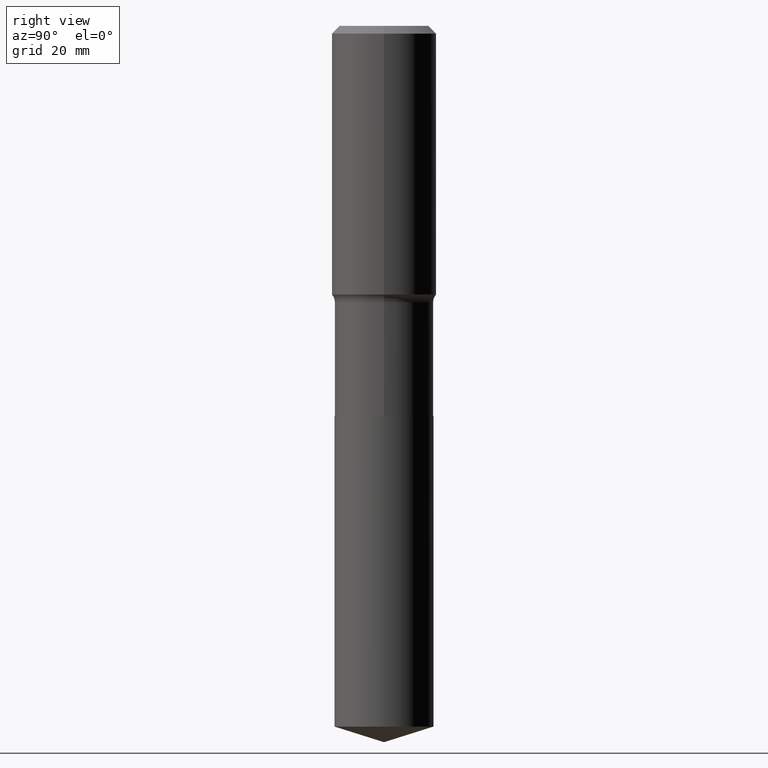
[diagram: clean part render]
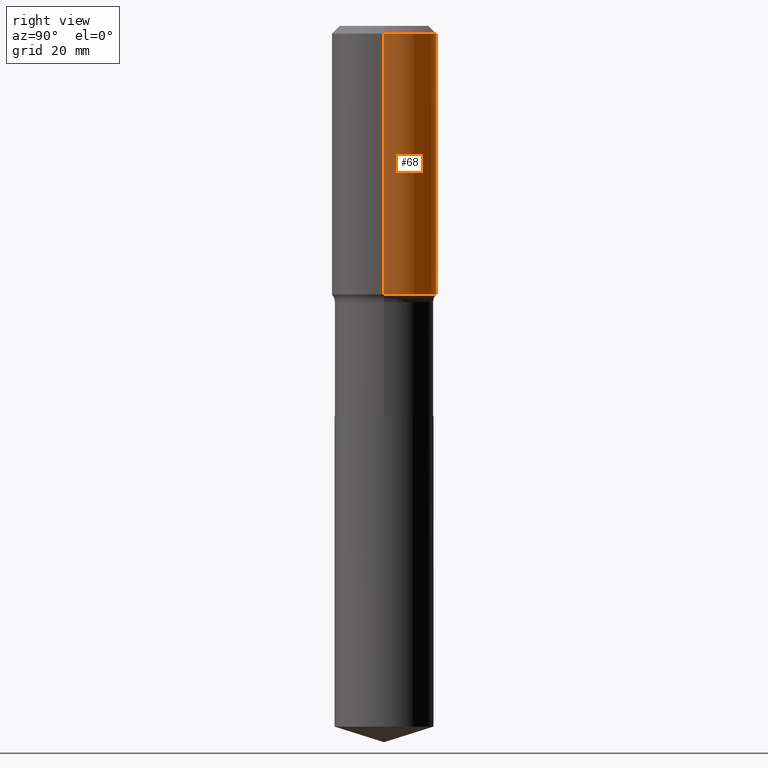
[diagram: same view with one face highlighted and labeled with its STEP entity id]
A machine part, right view. The second image highlights one B-rep face of the part: STEP entity #68.
In plain terms, the highlighted cylindrical surface (partial cylindrical patch) has radius 9.0005 mm, axis along (-0, 0, 1).
Its self-contained STEP definition (entity closure, byte-faithful):
#5 = CARTESIAN_POINT ( 'NONE',  ( 0.3543500000000001648, -8.815927369643196771E-15, -1.816281952950733025 ) ) ;
#12 = CARTESIAN_POINT ( 'NONE',  ( 0.3543499999999999983, -2.659993786700990170E-15, -0.05315250000000035224 ) ) ;
#41 = VERTEX_POINT ( 'NONE', #5 ) ;
#48 = CIRCLE ( 'NONE', #310, 0.3543499999999999983 ) ;
#68 = ADVANCED_FACE ( 'NONE', ( #466 ), #474, .T. ) ;
#69 = ORIENTED_EDGE ( 'NONE', *, *, #428, .T. ) ;
#76 = VERTEX_POINT ( 'NONE', #12 ) ;
#88 = CARTESIAN_POINT ( 'NONE',  ( 4.441660859178037633E-29, -6.341514544805068471E-15, -1.816281952950733025 ) ) ;
#107 = DIRECTION ( 'NONE',  ( 1.000000000000000000, -6.982962677686266711E-15, 0.000000000000000000 ) ) ;
#139 = CARTESIAN_POINT ( 'NONE',  ( -0.3543500000000001648, 2.517808184165916180E-15, -1.743024649231826627E-29 ) ) ;
#145 = CARTESIAN_POINT ( 'NONE',  ( 0.3543500000000001648, -2.474412824838129483E-15, 1.727873240503290590E-29 ) ) ;
#159 = ORIENTED_EDGE ( 'NONE', *, *, #305, .F. ) ;
#187 = AXIS2_PLACEMENT_3D ( 'NONE', #88, #235, #107 ) ;
#211 = VECTOR ( 'NONE', #361, 39.37007874015748143 ) ;
#212 = CARTESIAN_POINT ( 'NONE',  ( 0.000000000000000000, 0.000000000000000000, 0.000000000000000000 ) ) ;
#213 = LINE ( 'NONE', #139, #211 ) ;
#222 = CIRCLE ( 'NONE', #187, 0.3543500000000002204 ) ;
#235 = DIRECTION ( 'NONE',  ( -2.445468806185136597E-29, 3.491481338843145583E-15, 1.000000000000000000 ) ) ;
#249 = EDGE_CURVE ( 'NONE', #41, #373, #222, .T. ) ;
#258 = AXIS2_PLACEMENT_3D ( 'NONE', #212, #322, #429 ) ;
#260 = ORIENTED_EDGE ( 'NONE', *, *, #249, .T. ) ;
#262 = DIRECTION ( 'NONE',  ( -2.445468806185136597E-29, 3.491481338843145583E-15, 1.000000000000000000 ) ) ;
#266 = CARTESIAN_POINT ( 'NONE',  ( -0.3543500000000001648, -3.823706360639151503E-15, -1.816281952950733025 ) ) ;
#305 = EDGE_CURVE ( 'NONE', #76, #374, #48, .T. ) ;
#310 = AXIS2_PLACEMENT_3D ( 'NONE', #461, #262, #488 ) ;
#322 = DIRECTION ( 'NONE',  ( -2.445468806185136597E-29, 3.491481338843145583E-15, 1.000000000000000000 ) ) ;
#328 = DIRECTION ( 'NONE',  ( -2.445468806185136877E-29, 3.491481338843145188E-15, 1.000000000000000000 ) ) ;
#340 = EDGE_LOOP ( 'NONE', ( #260, #69, #159, #414 ) ) ;
#361 = DIRECTION ( 'NONE',  ( -2.445468806185136877E-29, 3.491481338843145188E-15, 1.000000000000000000 ) ) ;
#373 = VERTEX_POINT ( 'NONE', #266 ) ;
#374 = VERTEX_POINT ( 'NONE', #418 ) ;
#414 = ORIENTED_EDGE ( 'NONE', *, *, #453, .F. ) ;
#418 = CARTESIAN_POINT ( 'NONE',  ( -0.3543499999999999983, -7.457395691680486953E-16, -0.05315250000000035224 ) ) ;
#422 = LINE ( 'NONE', #145, #485 ) ;
#428 = EDGE_CURVE ( 'NONE', #373, #374, #213, .T. ) ;
#429 = DIRECTION ( 'NONE',  ( 1.000000000000000000, -6.982962677686265922E-15, 4.876176775795935793E-29 ) ) ;
#453 = EDGE_CURVE ( 'NONE', #41, #76, #422, .T. ) ;
#461 = CARTESIAN_POINT ( 'NONE',  ( 1.299827807207563322E-30, -1.855809618628615256E-16, -0.05315250000000035224 ) ) ;
#466 = FACE_OUTER_BOUND ( 'NONE', #340, .T. ) ;
#474 = CYLINDRICAL_SURFACE ( 'NONE', #258, 0.3543500000000001648 ) ;
#485 = VECTOR ( 'NONE', #328, 39.37007874015748143 ) ;
#488 = DIRECTION ( 'NONE',  ( 1.000000000000000000, -6.982962677686266711E-15, 0.000000000000000000 ) ) ;